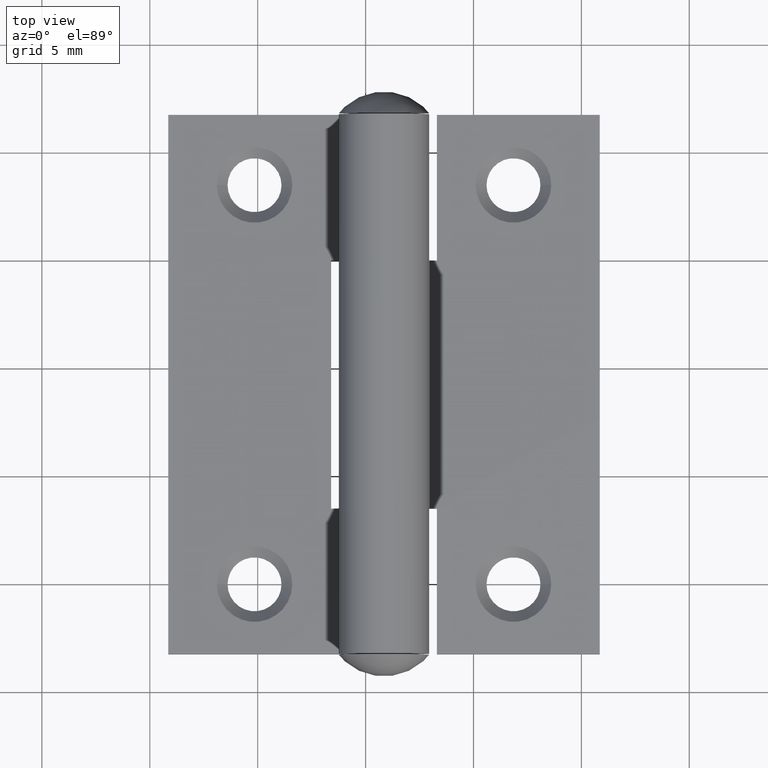
[diagram: clean part render]
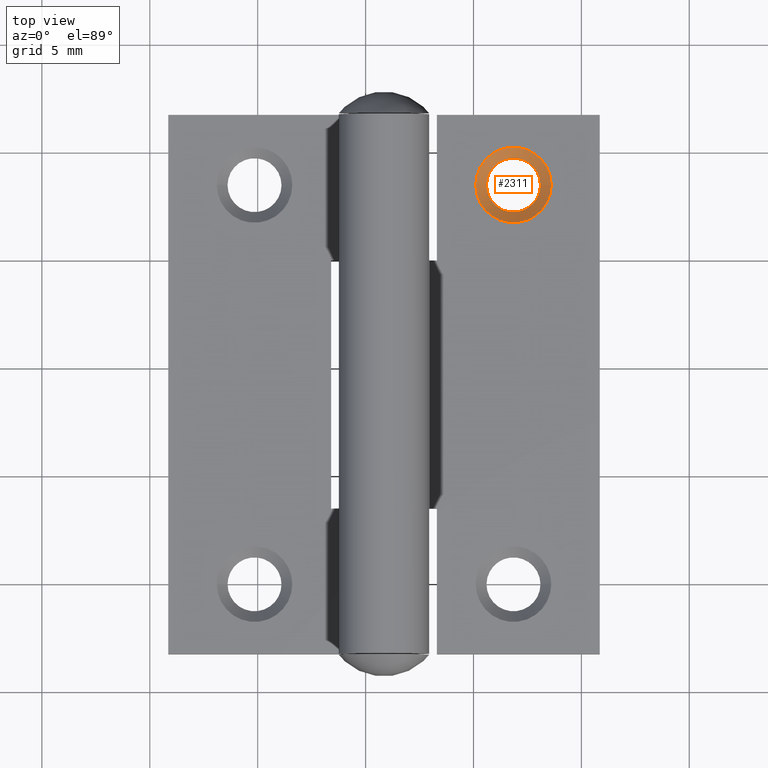
[diagram: same view with one face highlighted and labeled with its STEP entity id]
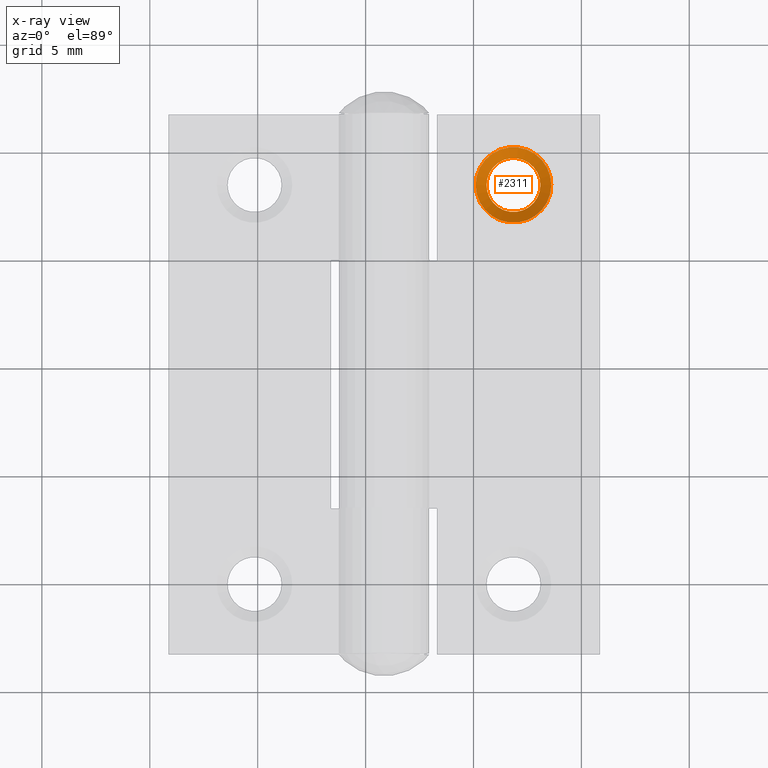
[diagram: x-ray of the same camera — body ghosted, the highlighted face saturated]
A machine part, top view. The second image highlights one B-rep face of the part: STEP entity #2311.
The next image is the same camera in x-ray: the body ghosted, the highlighted face saturated — about 0% of this face is hidden behind the body in this view.
In plain terms, the highlighted conical surface has half-angle 45 deg.
Its self-contained STEP definition (entity closure, byte-faithful):
#249 = DIRECTION ( 'NONE',  ( 0.000000000000000000, 0.000000000000000000, 1.000000000000000000 ) ) ;
#256 = ORIENTED_EDGE ( 'NONE', *, *, #806, .F. ) ;
#658 = VERTEX_POINT ( 'NONE', #1592 ) ;
#787 = CARTESIAN_POINT ( 'NONE',  ( -8.099999999999996092, -9.250000000000001776, 0.7000000000000008438 ) ) ;
#806 = EDGE_CURVE ( 'NONE', #658, #658, #4238, .T. ) ;
#1442 = CARTESIAN_POINT ( 'NONE',  ( -8.099999999999996092, -9.250000000000001776, 0.2000000000000118627 ) ) ;
#1592 = CARTESIAN_POINT ( 'NONE',  ( -9.849999999999990763, -9.250000000000001776, 0.7000000000000010658 ) ) ;
#2311 = ADVANCED_FACE ( 'NONE', ( #4671, #10808 ), #3706, .F. ) ;
#3218 = AXIS2_PLACEMENT_3D ( 'NONE', #787, #6893, #6138 ) ;
#3706 = CONICAL_SURFACE ( 'NONE', #6177, 1.250000000000000222, 0.7853981633974539411 ) ;
#3779 = AXIS2_PLACEMENT_3D ( 'NONE', #5405, #249, #7281 ) ;
#4046 = EDGE_LOOP ( 'NONE', ( #256 ) ) ;
#4238 = CIRCLE ( 'NONE', #3218, 1.749999999999994671 ) ;
#4671 = FACE_OUTER_BOUND ( 'NONE', #4046, .T. ) ;
#5405 = CARTESIAN_POINT ( 'NONE',  ( -8.099999999999996092, -9.250000000000001776, 0.2000000000000120015 ) ) ;
#5961 = EDGE_LOOP ( 'NONE', ( #7584 ) ) ;
#6138 = DIRECTION ( 'NONE',  ( -1.000000000000000000, 0.000000000000000000, 1.239088197126294515E-16 ) ) ;
#6177 = AXIS2_PLACEMENT_3D ( 'NONE', #1442, #6618, #8382 ) ;
#6618 = DIRECTION ( 'NONE',  ( 0.000000000000000000, 0.000000000000000000, 1.000000000000000000 ) ) ;
#6797 = VERTEX_POINT ( 'NONE', #11244 ) ;
#6893 = DIRECTION ( 'NONE',  ( -1.192622389734055124E-16, 0.000000000000000000, -1.000000000000000000 ) ) ;
#7281 = DIRECTION ( 'NONE',  ( -1.000000000000000000, 0.000000000000000000, 0.000000000000000000 ) ) ;
#7584 = ORIENTED_EDGE ( 'NONE', *, *, #8193, .F. ) ;
#8072 = CIRCLE ( 'NONE', #3779, 1.249999999999999334 ) ;
#8193 = EDGE_CURVE ( 'NONE', #6797, #6797, #8072, .T. ) ;
#8382 = DIRECTION ( 'NONE',  ( 1.000000000000000000, 0.000000000000000000, 0.000000000000000000 ) ) ;
#10808 = FACE_BOUND ( 'NONE', #5961, .T. ) ;
#11244 = CARTESIAN_POINT ( 'NONE',  ( -9.349999999999996092, -9.250000000000001776, 0.2000000000000120015 ) ) ;